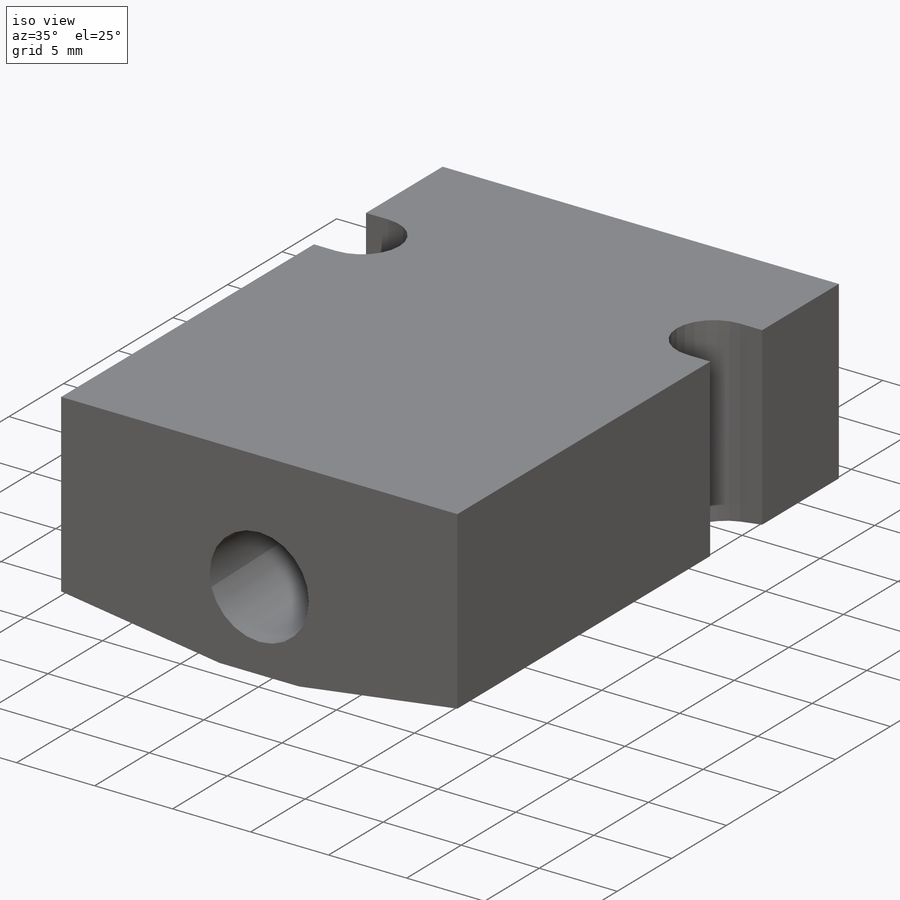
[diagram: iso view]
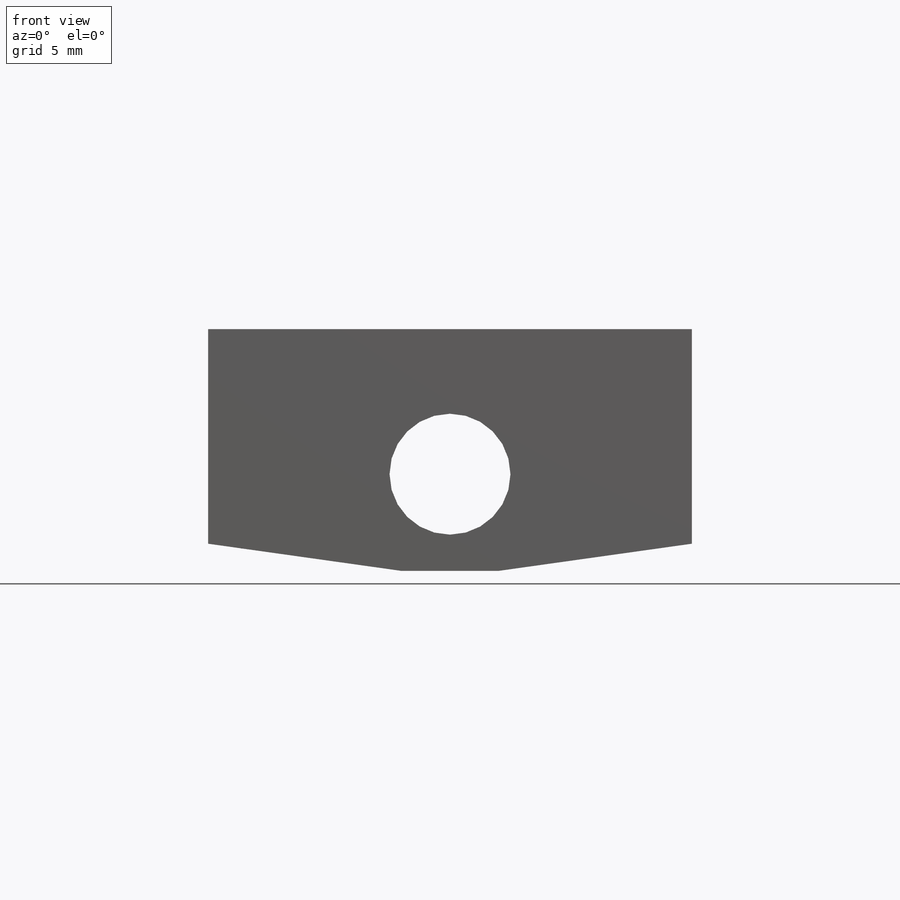
[diagram: front view]
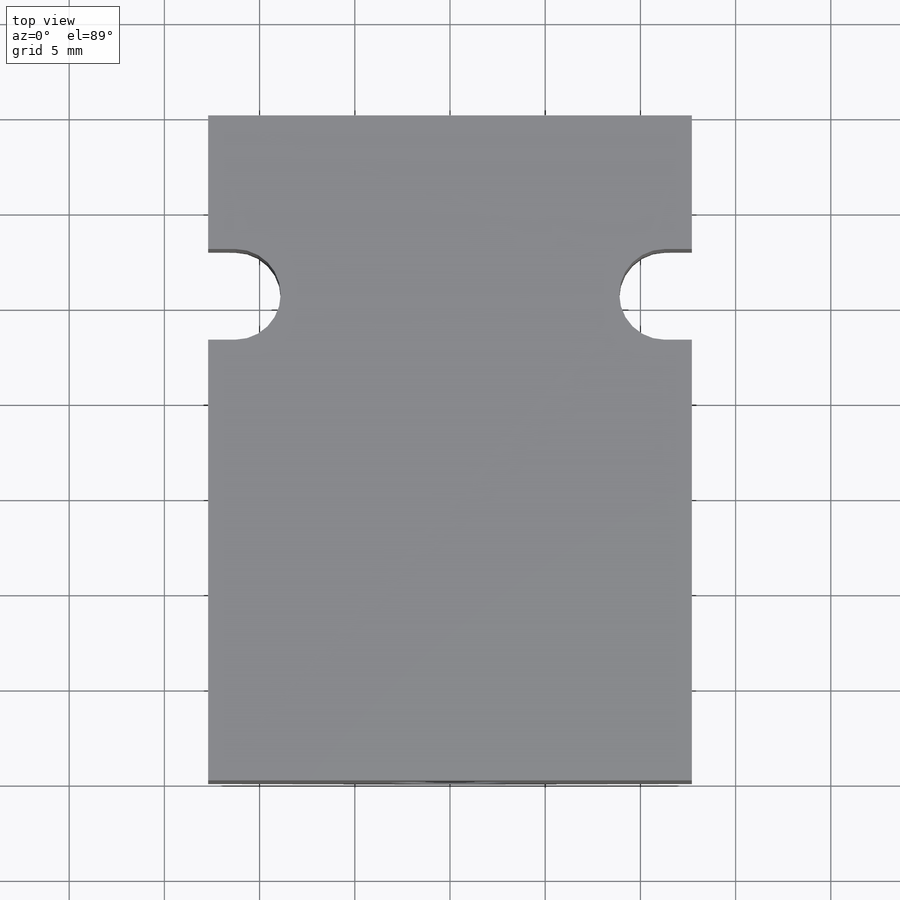
[diagram: top view]
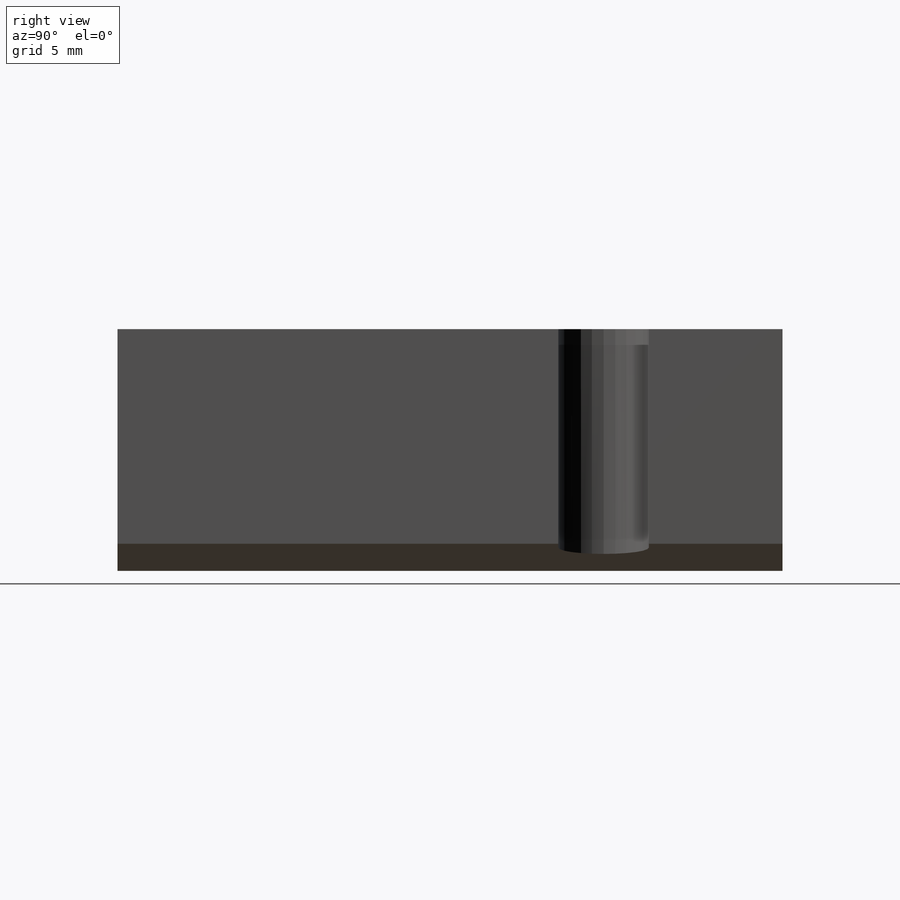
[diagram: right view]
SOLIDWORKS PART (.sldprt)
format: sldprt  version: not decoded by parser v0  size: 189,952 bytes
history: native  units: mm
features: sketch x5, material x1, extrude x1, chamfer x1, hole x1, cut_extrude x1, mirror x1 (+12 scaffold rows collapsed)
feature tree (23):
  scaffold x12  (default folders/planes/origin — collapsed)
  material  "Material <not specified>"
  sketch  "Sketch1"  dims[D1=12.7mm]
  extrude  "Extrude1"  Depth=34.925mm
  sketch  "Sketch8"  dims[D1=5.08mm]
  chamfer  "Chamfer1"  Distance=10.16mm Angle=8deg
  hole  "1/4 (0.25) Diameter Hole1"  Diameter=6.35mm Depth=34.925mm
  sketch  "Sketch3"
  sketch  "Sketch4"  dims[hole-wizard template sketch: 60 standard entries collapsed; hole parameters kept: c18.Thru Hole Depth=34.925mm]
  sketch  "Sketch5"  dims[D1=~1.42875mm]
  cut_extrude  "Extrude2"  [1 undecoded]
  mirror  "Mirror1"
decode coverage: 7 of 10 modeling features carry decoded parameters
note: ~ marks probable driven/reference dimensions
note: 1 parameter value undecoded
note: suppression state not decoded; provenance and decode notes live in map.json
